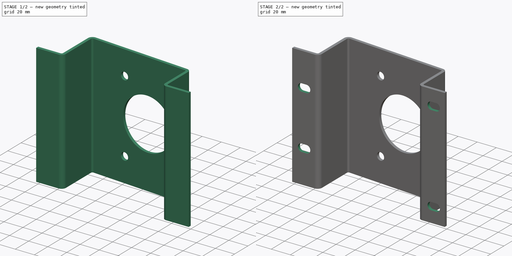
[diagram: build sequence overview — one tinted view per stage of 2, left to right]
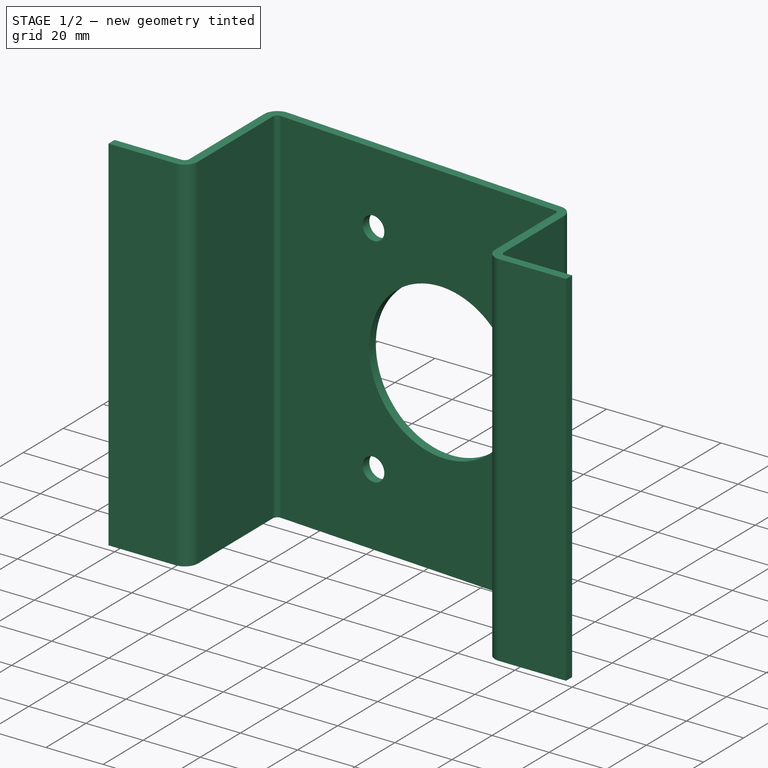
[diagram: stage 1 of 2 — iso view after this stage's code; geometry added in this stage tinted green]
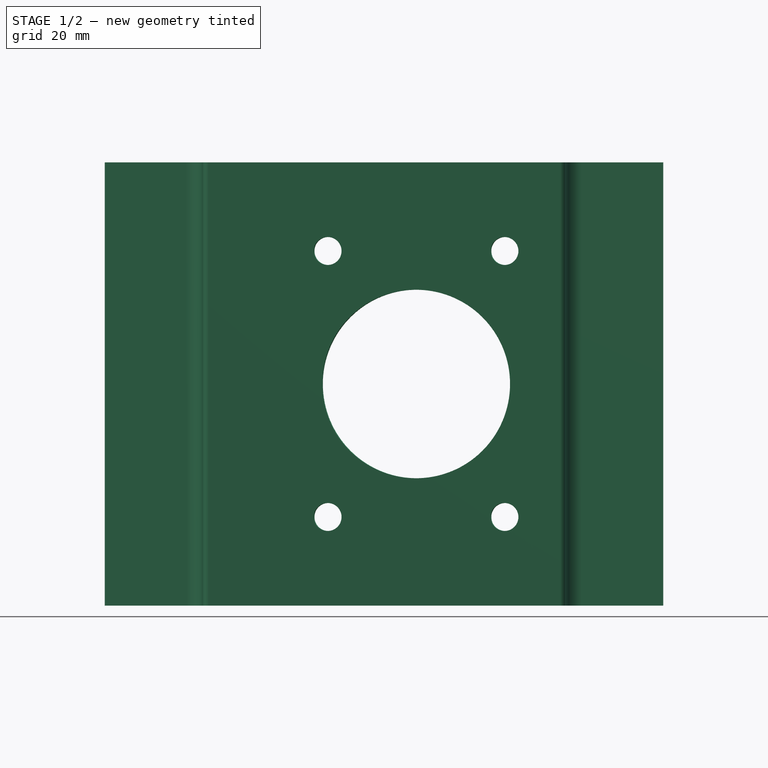
[diagram: stage 1 of 2 — front view after this stage's code; geometry added in this stage tinted green]
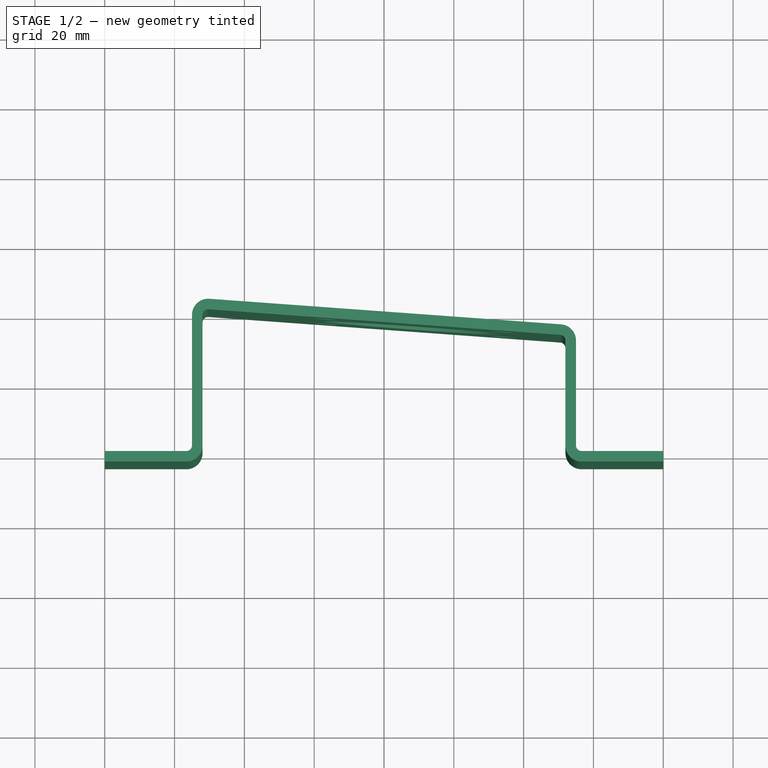
[diagram: stage 1 of 2 — top view after this stage's code; geometry added in this stage tinted green]
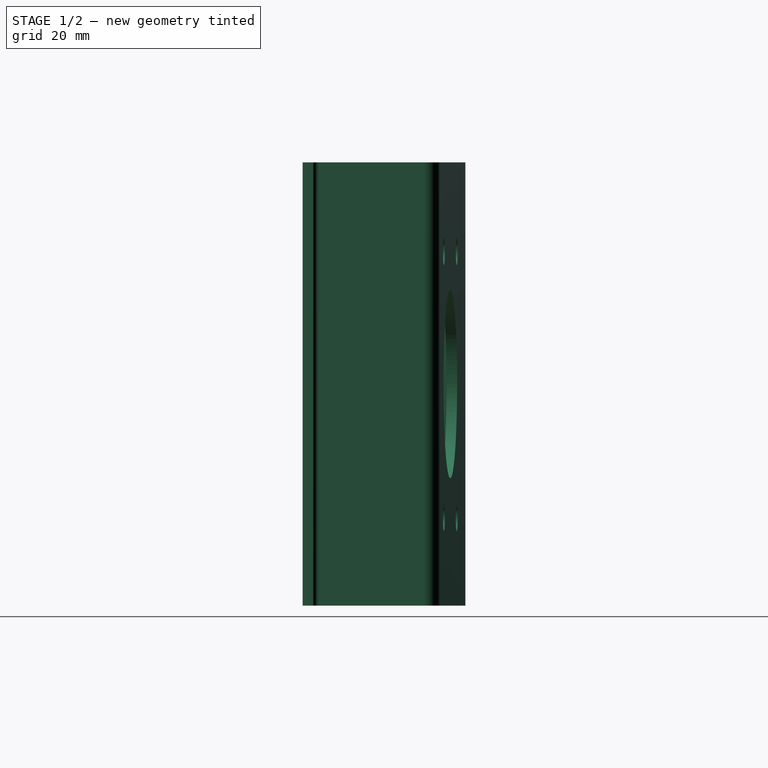
[diagram: stage 1 of 2 — right view after this stage's code; geometry added in this stage tinted green]
FCSTD DOCUMENT  (FreeCAD 0.20R)
Label: HydroThrottleplate
License: All rights reserved
LicenseURL: http://en.wikipedia.org/wiki/All_rights_reserved
objects: Sketcher::SketchObject×4, Part::FeaturePython×4, Spreadsheet::Sheet×2, Part::Feature×1
note: 9 computed .brp shape members not serialized (recipe doc carries the construction recipe); baked Part::Feature solids carry a one-line shape summary decoded from their .brp

FEATURE [Sketcher::SketchObject] Sketch
  FullyConstrained = false
  expr: Constraints[10] = <<PartDims>>.tabWidth
  expr: Constraints[11] = <<PartDims>>.tabWidth
  expr: Constraints[12] = <<PartDims>>.baseOutside
  expr: Constraints[13] = <<PartDims>>.OutRealHeight - <<MaterialInfo>>.thickness
  expr: Constraints[14] = <<PartDims>>.InRealHeight - <<MaterialInfo>>.thickness
  sketch-geometry (7):
    g0: LineSegment StartX=0 StartY=0 StartZ=0 EndX=25 EndY=0 EndZ=0
    g1: LineSegment StartX=25 StartY=0 StartZ=0 EndX=25 EndY=43.9774 EndZ=0
    g2: LineSegment StartX=25 StartY=43.9774 StartZ=0 EndX=135 EndY=35.9774 EndZ=0
    g3: LineSegment StartX=135 StartY=35.9774 StartZ=0 EndX=135 EndY=0 EndZ=0
    g4: LineSegment StartX=135 StartY=0 StartZ=0 EndX=160 EndY=0 EndZ=0
    g5: LineSegment StartX=25 StartY=43.9774 StartZ=0 EndX=25 EndY=92.186 EndZ=0
    g6: LineSegment StartX=135 StartY=35.9774 StartZ=0 EndX=200.3 EndY=32.3005 EndZ=0
  constraints (21):
    c: Coincident(g0,g-1)
    c: PointOnObject(g0,g-1)
    c: Coincident(g1,g0)
    c: Vertical(g1)
    c: Coincident(g2,g1)
    c: Coincident(g3,g2)
    c: PointOnObject(g3,g-1)
    c: Vertical(g3)
    c: Coincident(g4,g3)
    c: Horizontal(g4)
    c: Distance(g0) = 25
    c: Distance(g4) = 25
    c: DistanceX(g1,g2) = 110
    c: DistanceY(g1,g1) = 43.9774
    c: DistanceY(g3,g3) = 35.9774
    c: Angle(g1,g2) = 1.4982
    c: Angle(g2,g3) = 1.6434
    c: Coincident(g5,g1)
    c: Vertical(g5)
    c: Angle(g2,g5) = 1.6434
    c: Coincident(g6,g2)
FEATURE [Spreadsheet::Sheet] Spreadsheet  label="MaterialInfo"
  cells = A1=Material; B1=Mild Steel 0.119in; A2=k-factor; B2(kfactor)=0.38; A3=90d Bend Radius; B3(bendradius)=1.6; A4=Thickness; B4(thickness)=3.0226; A5=Bend Deduction; B5(benddedect)=4.9278
FEATURE [Spreadsheet::Sheet] Spreadsheet001  label="PartDims"
  cells = A1=Base Spacing; B1(baseOutside)=110; A2=Base Width; B2(BaseLen)==sqrt(pow(B1; 2) + pow(D7 - D10; 2)) - B6 / 2 - B9 / 2 - <<MaterialInfo>>.thickness; A3=Outside Angle; B3(inAngle)==-90deg + atan((D7 - D10) / B1); A4=Inside Angle; B4(OutAngle)==180deg + B3; A5=OutsideAllow; B5(OutAllow)==abs(B3) * pi / 180deg * (<<MaterialInfo>>.bendradius + <<MaterialInfo>>.kfactor * <<MaterialInfo>>.thickness); A6=OutsideDeduct; B6(OutDeduct)==2 * (<<MaterialInfo>>.bendradius + <<MaterialInfo>>.thickness) * tan(abs(B3) / 2) - B5; A7=Height Outside; B7(OutLen)==D7 - <<MaterialInfo>>.benddedect / 2 - B6 / 2 - <<MaterialInfo>>.thickness; C7=Real; D7(OutRealHeight)=47; A8=InsideAllow; B8(InAllow)==abs(B4) * pi / 180deg * (<<MaterialInfo>>.bendradius + <<MaterialInfo>>.kfactor * <<MaterialInfo>>.thickness); A9=InsideDeduct; B9(InDeduct)==2 * (<<MaterialInfo>>.bendradius + <<MaterialInfo>>.thickness) * tan(abs(B4) / 2) - B8; A10=Height Inside; B10(InLen)==D10 - <<MaterialInfo>>.benddedect / 2 - B9 / 2 - <<MaterialInfo>>.thickness; C10=Real; D10(InRealHeight)=39; A11=Tab Width; B11(tabWidth)=25; A13=Throttle U-Plat Mount Holes; B13(throtHoleDia)=8
FEATURE [Part::FeaturePython] BaseBend  # WARN: FeaturePython — macro-defined, semantics opaque (R4)
  BendSide = 0
  BendSketch = -> Sketch
  MidPlane = false
  Reverse = false
  length = 127
  radius = 1.6
  thickness = 3.0226
  expr: radius = <<MaterialInfo>>.bendradius
  expr: thickness = <<MaterialInfo>>.thickness
FEATURE [Sketcher::SketchObject] Sketch001
  ExternalGeometry = -> [BaseBend,Sketch]
  FullyConstrained = true
  MapMode = 5
  Placement = pos=(3.31306,45.5546,0) rot=(0.025671,0.706874,0.706874;3.09026rad)
  Support = -> [BaseBend]
  expr: Constraints[0] = <<PartDims>>.throtHoleDia
  sketch-geometry (11):
    g0: Circle CenterX=-111.715 CenterY=25.4 CenterZ=0 NormalX=0 NormalY=0 NormalZ=1 AngleXU=0 Radius=4
    g1: Circle CenterX=-60.9147 CenterY=25.4 CenterZ=0 NormalX=0 NormalY=0 NormalZ=1 AngleXU=0 Radius=4
    g2: Circle CenterX=-60.9147 CenterY=101.6 CenterZ=0 NormalX=0 NormalY=0 NormalZ=1 AngleXU=0 Radius=4
    g3: Circle CenterX=-111.715 CenterY=101.6 CenterZ=0 NormalX=0 NormalY=0 NormalZ=1 AngleXU=0 Radius=4
    g4: LineSegment StartX=-111.715 StartY=101.6 StartZ=0 EndX=-60.9147 EndY=101.6 EndZ=0
    g5: LineSegment StartX=-111.715 StartY=101.6 StartZ=0 EndX=-111.715 EndY=25.4 EndZ=0
    g6: LineSegment StartX=-111.715 StartY=25.4 StartZ=0 EndX=-60.9147 EndY=25.4 EndZ=0
    g7: LineSegment StartX=-60.9147 StartY=25.4 StartZ=0 EndX=-60.9147 EndY=101.6 EndZ=0
    g8: Circle CenterX=-86.3147 CenterY=63.5 CenterZ=0 NormalX=0 NormalY=0 NormalZ=1 AngleXU=0 Radius=27
    g9: LineSegment StartX=-111.715 StartY=25.4 StartZ=0 EndX=-60.9147 EndY=101.6 EndZ=0
    g10: LineSegment StartX=-111.715 StartY=101.6 StartZ=0 EndX=-60.9147 EndY=25.4 EndZ=0
  constraints (27):
    c: Diameter(g2) = 8
    c: Equal(g3,g2)
    c: Equal(g2,g1)
    c: Equal(g2,g0)
    c: Coincident(g4,g3)
    c: Coincident(g4,g2)
    c: Horizontal(g4)
    c: Coincident(g5,g3)
    c: Coincident(g5,g0)
    c: Vertical(g5)
    c: Coincident(g6,g0)
    c: Coincident(g6,g1)
    c: Horizontal(g6)
    c: Coincident(g7,g1)
    c: Coincident(g7,g2)
    c: Vertical(g7)
    c: DistanceX(g4,g4) = 50.8
    c: Coincident(g9,g0)
    c: Coincident(g9,g2)
    c: PointOnObject(g8,g9)
    c: DistanceY(g-4,g0) = 25.4
    c: DistanceX(g-4,g0) = 20.32
    c: DistanceY(g3,g-5) = 25.4
    c: Coincident(g10,g3)
    c: Coincident(g10,g1)
    c: PointOnObject(g8,g10)
    c: Diameter(g8) = 54
FEATURE [Part::FeaturePython] SketchOnSheet  # WARN: FeaturePython — macro-defined, semantics opaque (R4)
  Sketch = -> Sketch001
  baseObject = -> BaseBend [Face14]
  kfactor = 0.5
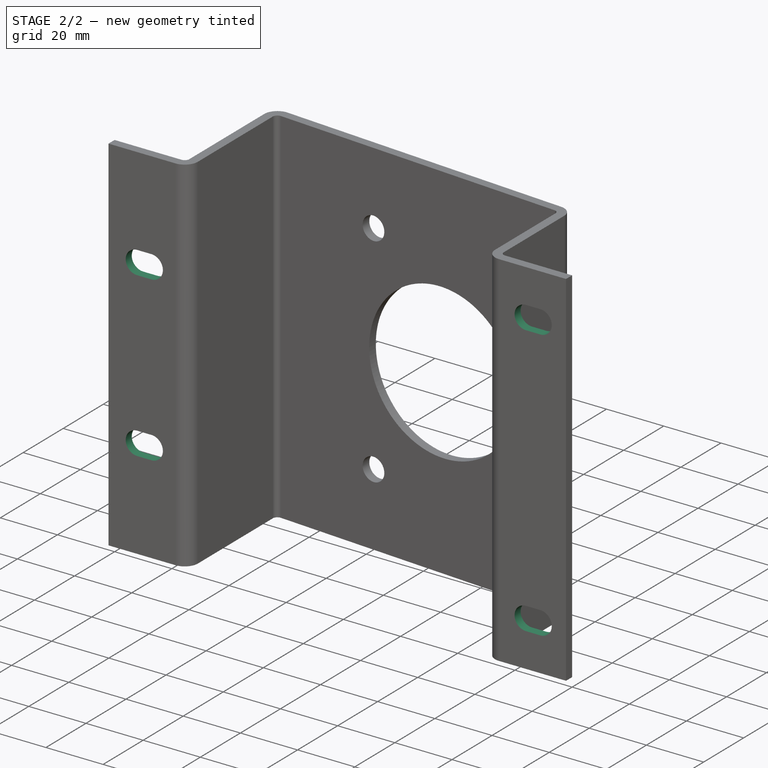
[diagram: stage 2 of 2 — iso view after this stage's code; geometry added in this stage tinted green]
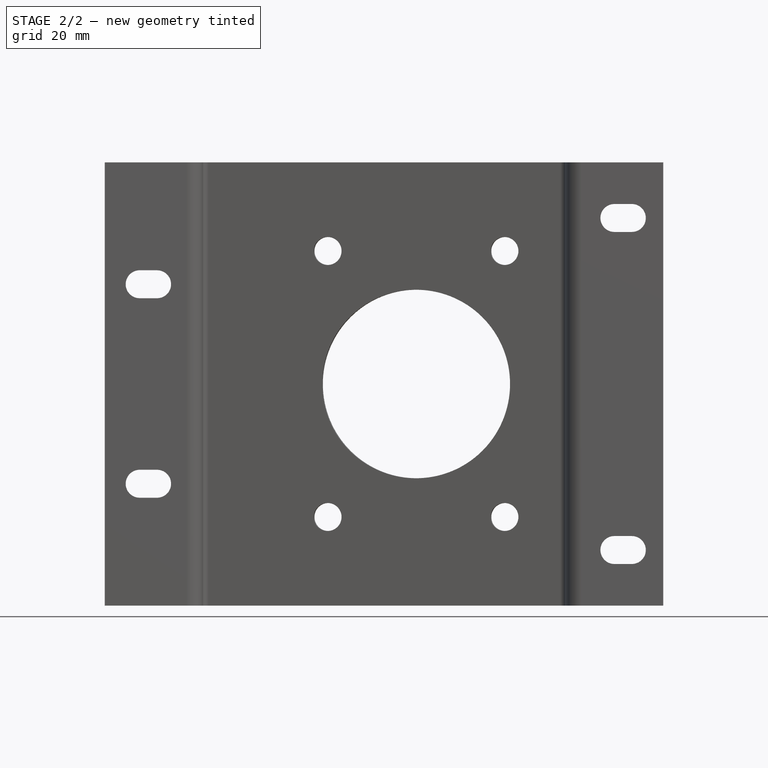
[diagram: stage 2 of 2 — front view after this stage's code; geometry added in this stage tinted green]
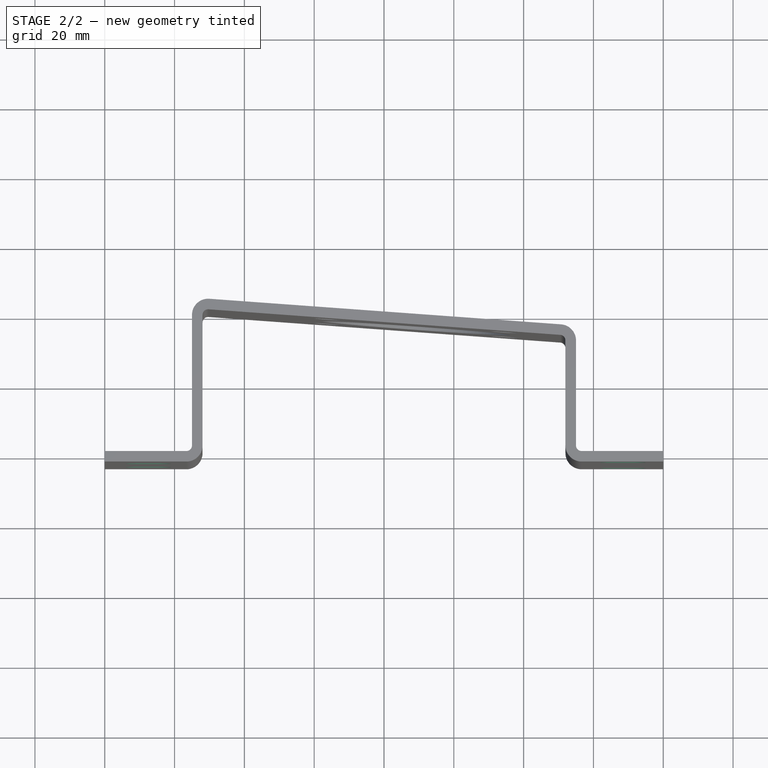
[diagram: stage 2 of 2 — top view after this stage's code; geometry added in this stage tinted green]
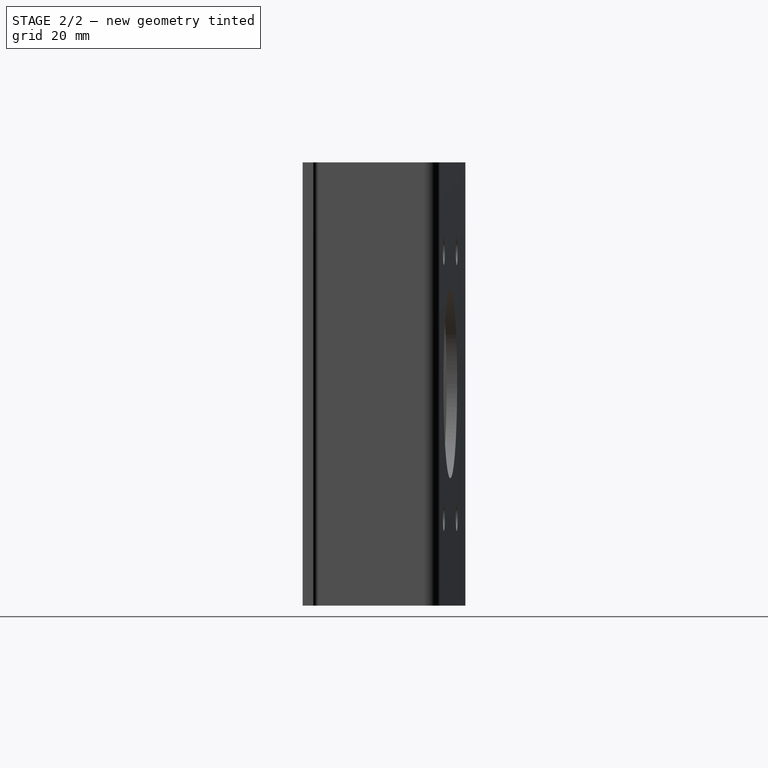
[diagram: stage 2 of 2 — right view after this stage's code; geometry added in this stage tinted green]
FEATURE [Sketcher::SketchObject] Sketch002  label="ControlPanelHoles"
  ExternalGeometry = -> [SketchOnSheet]
  FullyConstrained = false
  Placement = pos=(0,0,0) rot=(1,0,0;1.5708rad)
  expr: Constraints[26] = (101.37 - 6.25) / 2
  sketch-geometry (11):
    g0: ArcOfCircle CenterX=146 CenterY=15.94 CenterZ=0 NormalX=0 NormalY=0 NormalZ=1 AngleXU=0 Radius=4 StartAngle=1.5708 EndAngle=4.71239
    g1: ArcOfCircle CenterX=151 CenterY=15.94 CenterZ=0 NormalX=0 NormalY=0 NormalZ=1 AngleXU=0 Radius=4 StartAngle=4.71239 EndAngle=7.85398
    g2: LineSegment StartX=146 StartY=11.94 StartZ=0 EndX=151 EndY=11.94 EndZ=0
    g3: LineSegment StartX=151 StartY=19.94 StartZ=0 EndX=146 EndY=19.94 EndZ=0
    g4: ArcOfCircle CenterX=146 CenterY=111.06 CenterZ=0 NormalX=0 NormalY=0 NormalZ=1 AngleXU=0 Radius=4 StartAngle=1.5708 EndAngle=4.71239
    g5: ArcOfCircle CenterX=151 CenterY=111.06 CenterZ=0 NormalX=0 NormalY=0 NormalZ=1 AngleXU=0 Radius=4 StartAngle=4.71239 EndAngle=7.85398
    g6: LineSegment StartX=146 StartY=107.06 StartZ=0 EndX=151 EndY=107.06 EndZ=0
    g7: LineSegment StartX=151 StartY=115.06 StartZ=0 EndX=146 EndY=115.06 EndZ=0
    g8: LineSegment StartX=160 StartY=63.5 StartZ=0 EndX=160 EndY=0 EndZ=0
    g9: LineSegment StartX=160 StartY=63.5 StartZ=0 EndX=160 EndY=127 EndZ=0
    g10: LineSegment StartX=160 StartY=63.5 StartZ=0 EndX=143.152 EndY=63.5 EndZ=0
  constraints (27):
    c: Tangent(g0,g2) = -1.5708
    c: Tangent(g2,g1) = -1.5708
    c: Tangent(g1,g3) = -1.5708
    c: Tangent(g3,g0) = -1.5708
    c: Equal(g0,g1)
    c: Horizontal(g3)
    c: DistanceX(g0,g1) = 5
    c: DistanceY(g0,g0) = 8
    c: Tangent(g4,g6) = -1.5708
    c: Tangent(g6,g5) = -1.5708
    c: Tangent(g5,g7) = -1.5708
    c: Tangent(g7,g4) = -1.5708
    c: Equal(g4,g5)
    c: Horizontal(g7)
    c: DistanceX(g4,g5) = 5
    c: DistanceY(g4,g4) = 8
    c: DistanceX(g1,g-3) = 9
    c: Coincident(g9,g8)
    c: Coincident(g9,g-3)
    c: Equal(g9,g8)
    c: Perpendicular(g8,g10)
    c: Symmetric(g1,g5,g10)
    c: DistanceX(g-3,g-3) = 0
    c: Coincident(g10,g8)
    c: Coincident(g8,g-3)
    c: Parallel(g8,g9)
    c: DistanceY(g1,g10) = 47.56
FEATURE [Part::FeaturePython] SketchOnSheet001  # WARN: FeaturePython — macro-defined, semantics opaque (R4)
  Sketch = -> Sketch002
  baseObject = -> SketchOnSheet [Face1]
  kfactor = 0.5
FEATURE [Sketcher::SketchObject] Sketch003
  ExternalGeometry = -> [SketchOnSheet001]
  FullyConstrained = true
  Placement = pos=(0,0,0) rot=(1,0,0;1.5708rad)
  sketch-geometry (11):
    g0: LineSegment StartX=0 StartY=127 StartZ=0 EndX=0 EndY=63.5 EndZ=0
    g1: LineSegment StartX=0 StartY=0 StartZ=0 EndX=0 EndY=63.5 EndZ=0
    g2: LineSegment StartX=0 StartY=63.5 StartZ=0 EndX=13.37 EndY=63.5 EndZ=0
    g3: ArcOfCircle CenterX=15 CenterY=92.075 CenterZ=0 NormalX=0 NormalY=0 NormalZ=1 AngleXU=0 Radius=4 StartAngle=4.71239 EndAngle=7.85398
    g4: ArcOfCircle CenterX=10 CenterY=92.075 CenterZ=0 NormalX=0 NormalY=0 NormalZ=1 AngleXU=0 Radius=4 StartAngle=1.5708 EndAngle=4.71239
    g5: LineSegment StartX=15 StartY=96.075 StartZ=0 EndX=10 EndY=96.075 EndZ=0
    g6: LineSegment StartX=10 StartY=88.075 StartZ=0 EndX=15 EndY=88.075 EndZ=0
    g7: ArcOfCircle CenterX=15 CenterY=34.925 CenterZ=0 NormalX=0 NormalY=0 NormalZ=1 AngleXU=0 Radius=4 StartAngle=4.71239 EndAngle=7.85398
    g8: ArcOfCircle CenterX=10 CenterY=34.925 CenterZ=0 NormalX=0 NormalY=0 NormalZ=1 AngleXU=0 Radius=4 StartAngle=1.5708 EndAngle=4.71239
    g9: LineSegment StartX=15 StartY=38.925 StartZ=0 EndX=10 EndY=38.925 EndZ=0
    g10: LineSegment StartX=10 StartY=30.925 StartZ=0 EndX=15 EndY=30.925 EndZ=0
  constraints (27):
    c: Coincident(g0,g-3)
    c: Coincident(g1,g-1)
    c: Coincident(g1,g0)
    c: Equal(g1,g0)
    c: Vertical(g1)
    c: Coincident(g2,g0)
    c: Perpendicular(g-2,g2)
    c: Distance(g2) = 13.37
    c: Tangent(g3,g5) = -1.5708
    c: Tangent(g5,g4) = -1.5708
    c: Tangent(g4,g6) = -1.5708
    c: Tangent(g6,g3) = -1.5708
    c: Equal(g3,g4)
    c: Horizontal(g5)
    c: Tangent(g7,g9) = -1.5708
    c: Tangent(g9,g8) = -1.5708
    c: Tangent(g8,g10) = -1.5708
    c: Tangent(g10,g7) = -1.5708
    c: Equal(g7,g8)
    c: Horizontal(g9)
    c: Symmetric(g3,g7,g2)
    c: Equal(g9,g5)
    c: Equal(g4,g8)
    c: DistanceX(g4,g3) = 5
    c: DistanceY(g2,g3) = 28.575
    c: DistanceX(g0,g4) = 10
    c: DistanceY(g3,g3) = 8
FEATURE [Part::FeaturePython] SketchOnSheet002  # WARN: FeaturePython — macro-defined, semantics opaque (R4)
  Sketch = -> Sketch003
  baseObject = -> SketchOnSheet001 [Face43]
  kfactor = 0.5
FEATURE [Part::Feature] Unfold001
  shape: bbox 238.2 x 20.32 x 127 mm, 27 faces (baked)
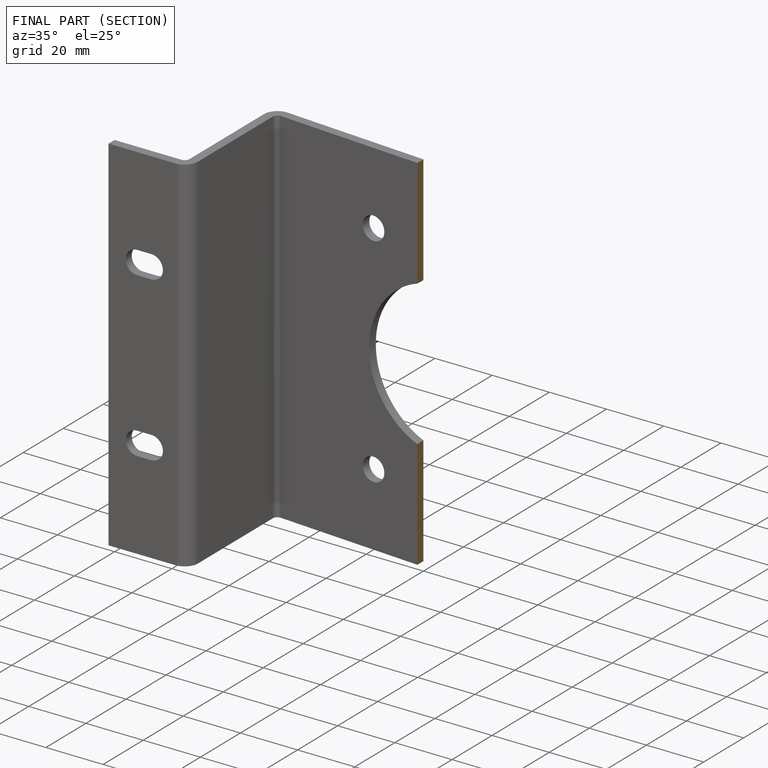
[diagram: finished part — half-section view (interior)]
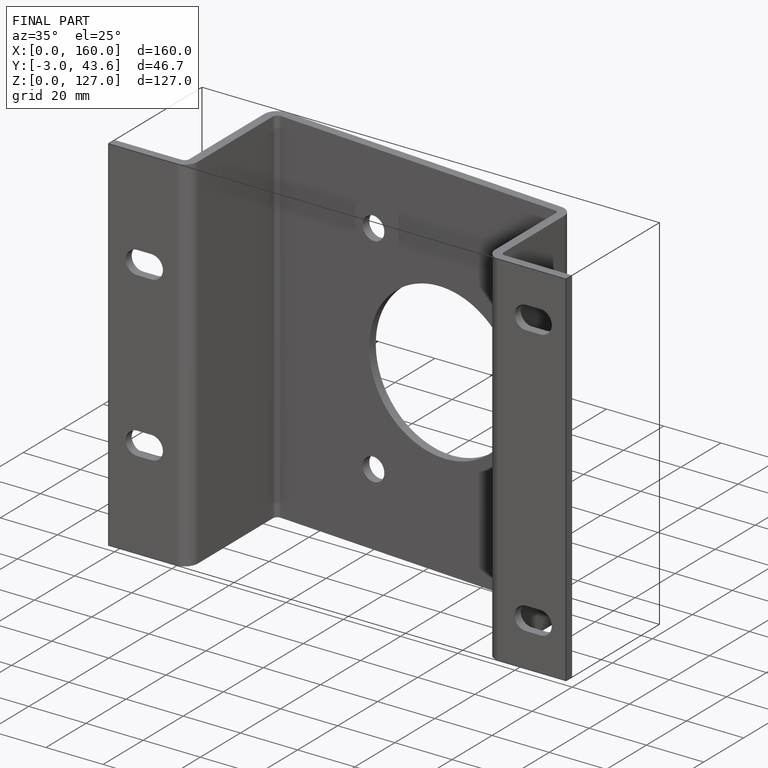
[diagram: finished part — iso view with bounding-box wireframe]
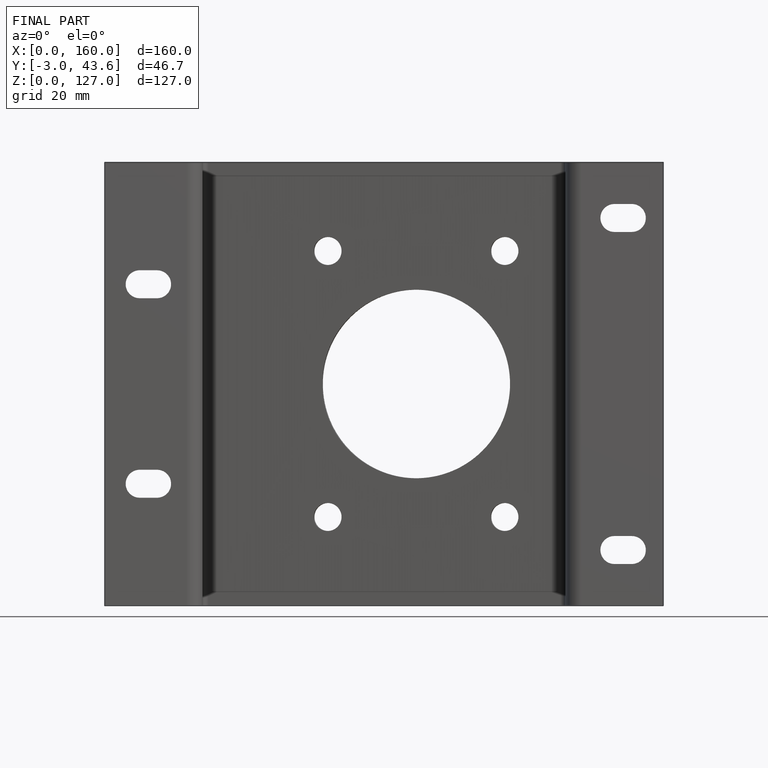
[diagram: finished part — front view with bounding-box wireframe]
